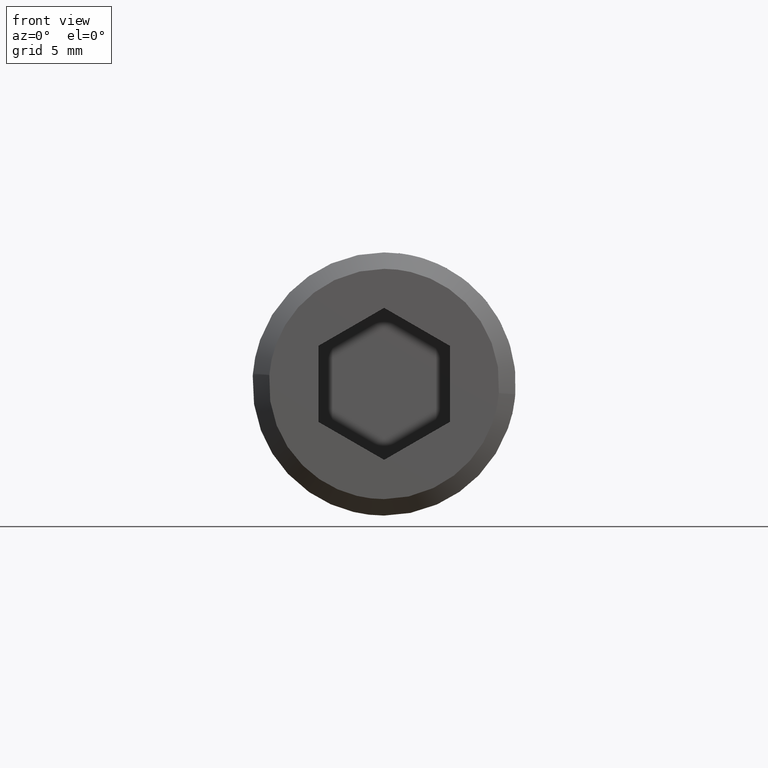
[diagram: clean part render]
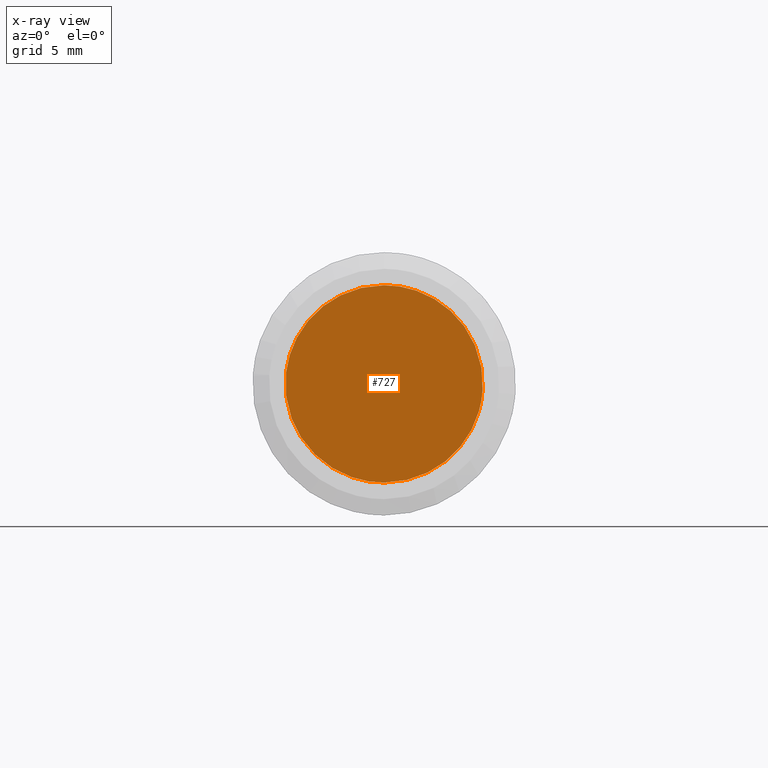
[diagram: x-ray — body ghosted, one internal face saturated and labeled with its STEP entity id]
A machine part, front view, then the same camera in x-ray: the body is ghosted and one INTERNAL B-rep face — a face not visible from any outside direction — is saturated and labeled: STEP entity #727.
In plain terms, the highlighted face is a freeform B-spline surface patch.
Its self-contained STEP definition (entity closure, byte-faithful):
#70=CARTESIAN_POINT('',(-5.958057462464865,-9.000000000000009,0.708202848031607));
#71=VERTEX_POINT('',#70);
#72=CARTESIAN_POINT('',(0.0,-9.0,-6.0));
#73=VERTEX_POINT('',#72);
#74=CARTESIAN_POINT('',(-5.958057462464865,-9.000000000000009,0.708202848031607));
#75=CARTESIAN_POINT('',(-6.0,-9.0,0.355343424425556));
#76=CARTESIAN_POINT('',(-6.0,-9.0,0.0));
#77=CARTESIAN_POINT('',(-6.0,-9.000000000000002,-6.0));
#78=CARTESIAN_POINT('',(0.0,-9.0,-6.0));
#86=(BOUNDED_CURVE()B_SPLINE_CURVE(2,(#74,#75,#76,#77,#78),.UNSPECIFIED.,.F.,.U.)B_SPLINE_CURVE_WITH_KNOTS((3,2,3),(0.229562546128734,0.250000000000000,0.500000000000000),.UNSPECIFIED.)CURVE()GEOMETRIC_REPRESENTATION_ITEM()RATIONAL_B_SPLINE_CURVE((0.956026896512564,0.976056033405174,1.0,0.707106781186548,1.0))REPRESENTATION_ITEM(''));
#87=EDGE_CURVE('',#71,#73,#86,.T.);
#89=CARTESIAN_POINT('',(5.988809336399950,-9.000000000000052,-0.366282312115718));
#90=VERTEX_POINT('',#89);
#91=CARTESIAN_POINT('',(0.0,-9.0,-6.0));
#92=CARTESIAN_POINT('',(5.644244828736739,-9.000000000000002,-6.000000000000001));
#93=CARTESIAN_POINT('',(5.988809336399950,-9.000000000000052,-0.366282312115718));
#101=(BOUNDED_CURVE()B_SPLINE_CURVE(2,(#91,#92,#93),.UNSPECIFIED.,.F.,.U.)B_SPLINE_CURVE_WITH_KNOTS((3,3),(0.500000000000000,0.739333219387683),.UNSPECIFIED.)CURVE()GEOMETRIC_REPRESENTATION_ITEM()RATIONAL_B_SPLINE_CURVE((1.0,0.719603692018222,0.976072592786037))REPRESENTATION_ITEM(''));
#102=EDGE_CURVE('',#73,#90,#101,.T.);
#169=CARTESIAN_POINT('',(0.0,-9.0,6.0));
#170=VERTEX_POINT('',#169);
#171=CARTESIAN_POINT('',(0.0,-9.0,6.0));
#172=CARTESIAN_POINT('',(-5.329049461478616,-9.0,6.000000000000001));
#173=CARTESIAN_POINT('',(-5.958057462464865,-9.000000000000009,0.708202848031607));
#181=(BOUNDED_CURVE()B_SPLINE_CURVE(2,(#171,#172,#173),.UNSPECIFIED.,.F.,.U.)B_SPLINE_CURVE_WITH_KNOTS((3,3),(0.0,0.229562546128734),.UNSPECIFIED.)CURVE()GEOMETRIC_REPRESENTATION_ITEM()RATIONAL_B_SPLINE_CURVE((1.0,0.731050747781373,0.956026896512564))REPRESENTATION_ITEM(''));
#182=EDGE_CURVE('',#170,#71,#181,.T.);
#216=CARTESIAN_POINT('',(5.988809336399950,-9.000000000000052,-0.366282312115718));
#217=CARTESIAN_POINT('',(6.0,-9.0,-0.183312104732784));
#218=CARTESIAN_POINT('',(6.0,-9.0,0.0));
#219=CARTESIAN_POINT('',(6.0,-9.000000000000002,6.0));
#220=CARTESIAN_POINT('',(0.0,-9.0,6.0));
#228=(BOUNDED_CURVE()B_SPLINE_CURVE(2,(#216,#217,#218,#219,#220),.UNSPECIFIED.,.F.,.U.)B_SPLINE_CURVE_WITH_KNOTS((3,2,3),(0.739333219387683,0.750000000000000,1.0),.UNSPECIFIED.)CURVE()GEOMETRIC_REPRESENTATION_ITEM()RATIONAL_B_SPLINE_CURVE((0.976072592786037,0.987503089168326,1.0,0.707106781186548,1.0))REPRESENTATION_ITEM(''));
#229=EDGE_CURVE('',#90,#170,#228,.T.);
#716=CARTESIAN_POINT('',(-6.599291187213043,-9.0,6.599399976741672));
#717=CARTESIAN_POINT('',(6.599253958151916,-9.0,6.599399976741672));
#718=CARTESIAN_POINT('',(-6.599291187213044,-9.0,-6.599400298606753));
#719=CARTESIAN_POINT('',(6.599253958151916,-9.0,-6.599400298606753));
#720=B_SPLINE_SURFACE_WITH_KNOTS('',1,1,((#716,#718),(#717,#719)),.UNSPECIFIED.,.F.,.F.,.U.,(2,2),(2,2),(0.0,13.198545145364960),(0.0,13.198800275348431),.UNSPECIFIED.);
#721=ORIENTED_EDGE('',*,*,#229,.F.);
#722=ORIENTED_EDGE('',*,*,#102,.F.);
#723=ORIENTED_EDGE('',*,*,#87,.F.);
#724=ORIENTED_EDGE('',*,*,#182,.F.);
#725=EDGE_LOOP('',(#721,#722,#723,#724));
#726=FACE_OUTER_BOUND('',#725,.T.);
#727=ADVANCED_FACE('',(#726),#720,.T.);